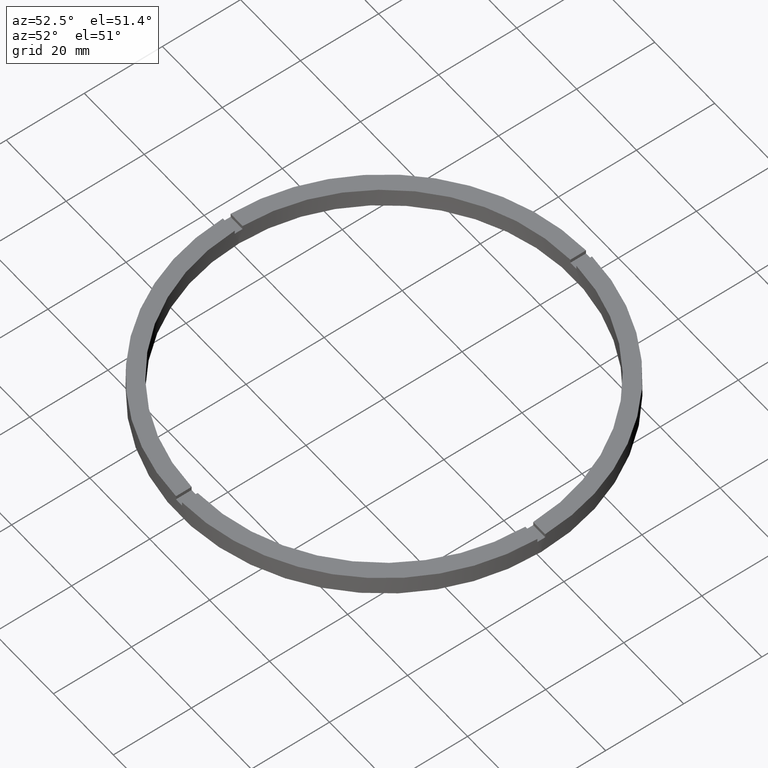
[diagram: clean part render]
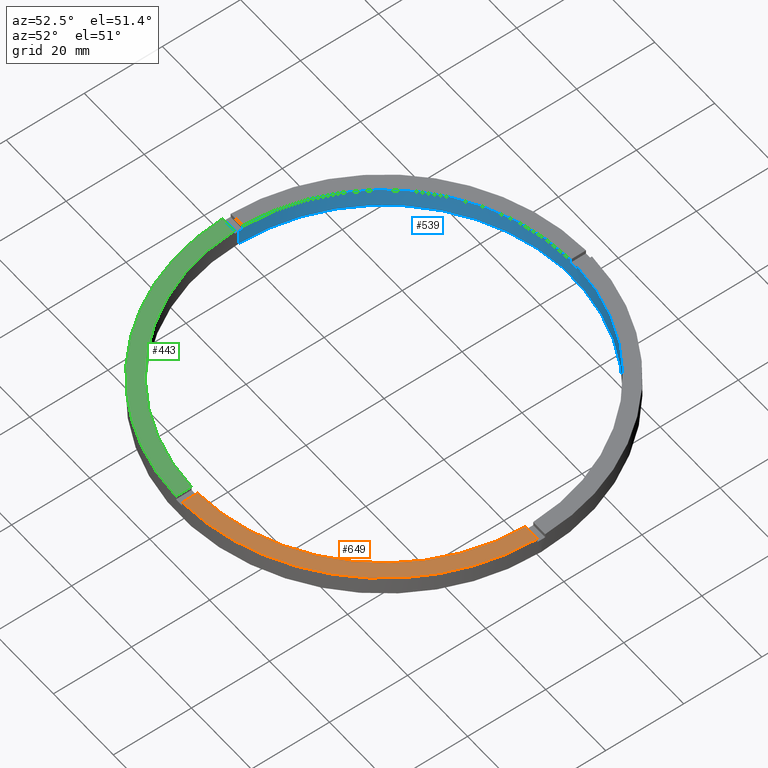
[diagram: same view with three faces highlighted in distinct colors, each labeled with its STEP entity id]
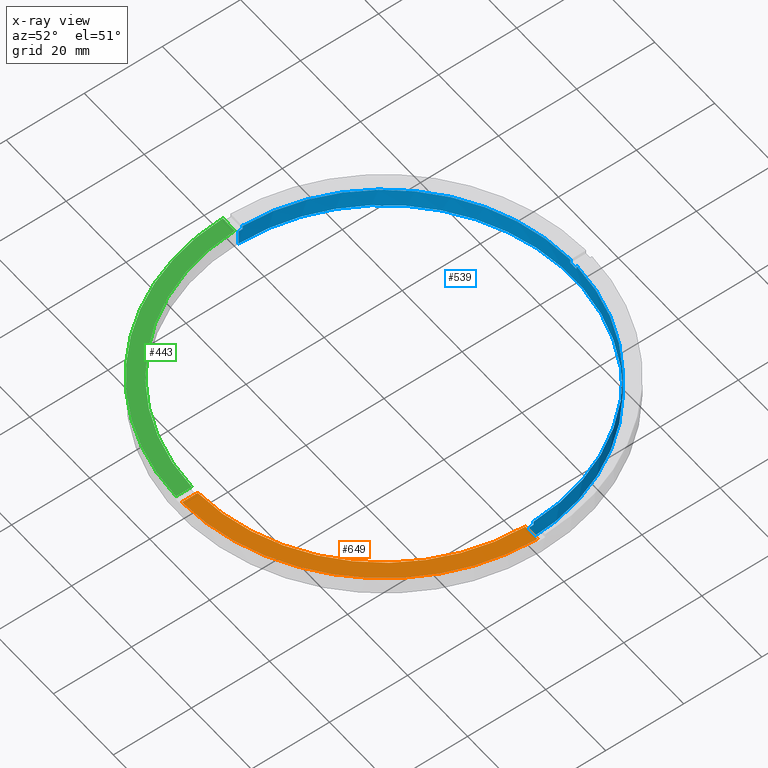
[diagram: x-ray of the same camera — body ghosted, the three highlighted faces saturated]
A machine part, auxiliary view with three faces highlighted in distinct colors.
The next image is the same camera in x-ray (body ghosted, the three faces saturated) — at least one of them is partly hidden behind the body in this view.
Their STEP definitions:

[orange] entity #649 — the highlighted planar face has unit normal (0, 0, 1).
#31 = EDGE_CURVE ( 'NONE', #457, #82, #673, .T. ) ;
#39 = EDGE_CURVE ( 'NONE', #596, #82, #218, .T. ) ;
#54 = DIRECTION ( 'NONE',  ( 1.000000000000000000, 0.000000000000000000, 0.000000000000000000 ) ) ;
#82 = VERTEX_POINT ( 'NONE', #579 ) ;
#84 = ORIENTED_EDGE ( 'NONE', *, *, #746, .F. ) ;
#87 = ORIENTED_EDGE ( 'NONE', *, *, #31, .F. ) ;
#180 = DIRECTION ( 'NONE',  ( 0.000000000000000000, 0.000000000000000000, 1.000000000000000000 ) ) ;
#195 = VERTEX_POINT ( 'NONE', #489 ) ;
#218 = CIRCLE ( 'NONE', #541, 52.50000000000000000 ) ;
#226 = DIRECTION ( 'NONE',  ( -1.301042606982605074E-16, 1.000000000000000000, -0.000000000000000000 ) ) ;
#235 = CARTESIAN_POINT ( 'NONE',  ( 0.9999999999998436806, -52.49047532648184955, 5.000000000000000000 ) ) ;
#244 = CARTESIAN_POINT ( 'NONE',  ( 0.000000000000000000, 0.000000000000000000, 5.000000000000000000 ) ) ;
#248 = DIRECTION ( 'NONE',  ( 0.000000000000000000, 0.000000000000000000, 1.000000000000000000 ) ) ;
#258 = AXIS2_PLACEMENT_3D ( 'NONE', #523, #248, #54 ) ;
#282 = AXIS2_PLACEMENT_3D ( 'NONE', #769, #180, #313 ) ;
#313 = DIRECTION ( 'NONE',  ( 1.000000000000000000, 0.000000000000000000, -0.000000000000000000 ) ) ;
#342 = EDGE_LOOP ( 'NONE', ( #87, #84, #361, #625 ) ) ;
#361 = ORIENTED_EDGE ( 'NONE', *, *, #544, .F. ) ;
#394 = CARTESIAN_POINT ( 'NONE',  ( 0.9999999999998425704, -42.50000000000017764, 5.000000000000000000 ) ) ;
#416 = DIRECTION ( 'NONE',  ( 0.000000000000000000, 0.000000000000000000, 1.000000000000000000 ) ) ;
#418 = VECTOR ( 'NONE', #717, 1000.000000000000000 ) ;
#452 = FACE_OUTER_BOUND ( 'NONE', #342, .T. ) ;
#457 = VERTEX_POINT ( 'NONE', #550 ) ;
#489 = CARTESIAN_POINT ( 'NONE',  ( 0.9999999999998432365, -48.48968962573384545, 5.000000000000000000 ) ) ;
#523 = CARTESIAN_POINT ( 'NONE',  ( 0.000000000000000000, 0.000000000000000000, 5.000000000000000000 ) ) ;
#541 = AXIS2_PLACEMENT_3D ( 'NONE', #244, #416, #584 ) ;
#544 = EDGE_CURVE ( 'NONE', #596, #195, #662, .T. ) ;
#550 = CARTESIAN_POINT ( 'NONE',  ( 48.48968962573384545, -1.000000000000154987, 5.000000000000000000 ) ) ;
#554 = CARTESIAN_POINT ( 'NONE',  ( 42.49999999999998579, -1.000000000000155431, 5.000000000000000000 ) ) ;
#579 = CARTESIAN_POINT ( 'NONE',  ( 52.49047532648184244, -1.000000000000154765, 5.000000000000000000 ) ) ;
#584 = DIRECTION ( 'NONE',  ( 1.000000000000000000, 0.000000000000000000, 0.000000000000000000 ) ) ;
#596 = VERTEX_POINT ( 'NONE', #235 ) ;
#625 = ORIENTED_EDGE ( 'NONE', *, *, #39, .T. ) ;
#649 = ADVANCED_FACE ( 'NONE', ( #452 ), #719, .T. ) ;
#662 = LINE ( 'NONE', #394, #680 ) ;
#673 = LINE ( 'NONE', #554, #418 ) ;
#680 = VECTOR ( 'NONE', #226, 1000.000000000000000 ) ;
#704 = CIRCLE ( 'NONE', #258, 48.50000000000000000 ) ;
#717 = DIRECTION ( 'NONE',  ( 1.000000000000000000, 6.505213034913025371E-17, 0.000000000000000000 ) ) ;
#719 = PLANE ( 'NONE',  #282 ) ;
#746 = EDGE_CURVE ( 'NONE', #195, #457, #704, .T. ) ;
#769 = CARTESIAN_POINT ( 'NONE',  ( 0.000000000000000000, 0.000000000000000000, 5.000000000000000000 ) ) ;

[blue] entity #539 — the highlighted cylindrical surface (partial cylindrical patch) has radius 48.5 mm, axis along (-0, -0, -1).
#19 = AXIS2_PLACEMENT_3D ( 'NONE', #773, #737, #71 ) ;
#20 = CARTESIAN_POINT ( 'NONE',  ( -48.50000000000000000, 0.000000000000000000, 5.000000000000000000 ) ) ;
#23 = CARTESIAN_POINT ( 'NONE',  ( -48.48968962573384545, 0.9999999999999685807, 5.000000000000000000 ) ) ;
#34 = DIRECTION ( 'NONE',  ( 1.000000000000000000, 0.000000000000000000, 0.000000000000000000 ) ) ;
#37 = CARTESIAN_POINT ( 'NONE',  ( 48.48968962573384545, 0.9999999999998450129, 5.000000000000000000 ) ) ;
#40 = DIRECTION ( 'NONE',  ( 0.000000000000000000, 0.000000000000000000, 1.000000000000000000 ) ) ;
#43 = EDGE_CURVE ( 'NONE', #130, #98, #480, .T. ) ;
#57 = DIRECTION ( 'NONE',  ( 0.000000000000000000, 0.000000000000000000, 1.000000000000000000 ) ) ;
#59 = CARTESIAN_POINT ( 'NONE',  ( 0.9999999999999729106, 48.48968962573384545, 4.000000000000000000 ) ) ;
#65 = DIRECTION ( 'NONE',  ( -0.000000000000000000, -0.000000000000000000, -1.000000000000000000 ) ) ;
#67 = AXIS2_PLACEMENT_3D ( 'NONE', #328, #229, #34 ) ;
#71 = DIRECTION ( 'NONE',  ( 1.000000000000000000, 0.000000000000000000, 0.000000000000000000 ) ) ;
#79 = ORIENTED_EDGE ( 'NONE', *, *, #147, .F. ) ;
#98 = VERTEX_POINT ( 'NONE', #502 ) ;
#112 = VERTEX_POINT ( 'NONE', #148 ) ;
#114 = DIRECTION ( 'NONE',  ( 0.000000000000000000, 0.000000000000000000, 1.000000000000000000 ) ) ;
#115 = ORIENTED_EDGE ( 'NONE', *, *, #389, .T. ) ;
#116 = CARTESIAN_POINT ( 'NONE',  ( -1.000000000000027089, 48.48968962573384545, 5.000000000000000000 ) ) ;
#118 = CIRCLE ( 'NONE', #142, 48.50000000000000000 ) ;
#127 = EDGE_LOOP ( 'NONE', ( #594, #338, #332, #351, #79, #115, #393, #651, #372, #345, #623, #620 ) ) ;
#130 = VERTEX_POINT ( 'NONE', #116 ) ;
#142 = AXIS2_PLACEMENT_3D ( 'NONE', #456, #504, #292 ) ;
#147 = EDGE_CURVE ( 'NONE', #617, #640, #473, .T. ) ;
#148 = CARTESIAN_POINT ( 'NONE',  ( 48.50000000000000000, 5.939536975864663363E-15, 0.000000000000000000 ) ) ;
#151 = VERTEX_POINT ( 'NONE', #479 ) ;
#157 = FACE_OUTER_BOUND ( 'NONE', #127, .T. ) ;
#165 = CIRCLE ( 'NONE', #67, 48.50000000000000000 ) ;
#166 = DIRECTION ( 'NONE',  ( -1.000000000000000000, 0.000000000000000000, 0.000000000000000000 ) ) ;
#168 = CIRCLE ( 'NONE', #526, 48.50000000000000000 ) ;
#172 = CARTESIAN_POINT ( 'NONE',  ( -48.50000000000000000, 0.000000000000000000, 0.000000000000000000 ) ) ;
#186 = CARTESIAN_POINT ( 'NONE',  ( 0.9999999999999729106, 48.48968962573384545, 5.000000000000000000 ) ) ;
#197 = CIRCLE ( 'NONE', #19, 48.50000000000000000 ) ;
#203 = LINE ( 'NONE', #514, #459 ) ;
#213 = VECTOR ( 'NONE', #771, 1000.000000000000000 ) ;
#215 = CARTESIAN_POINT ( 'NONE',  ( 0.000000000000000000, 0.000000000000000000, 0.000000000000000000 ) ) ;
#225 = LINE ( 'NONE', #20, #213 ) ;
#229 = DIRECTION ( 'NONE',  ( 0.000000000000000000, 0.000000000000000000, 1.000000000000000000 ) ) ;
#230 = CARTESIAN_POINT ( 'NONE',  ( 0.9999999999999729106, 48.48968962573384545, 5.000000000000000000 ) ) ;
#240 = EDGE_CURVE ( 'NONE', #151, #621, #225, .T. ) ;
#242 = CARTESIAN_POINT ( 'NONE',  ( -48.48968962573384545, 0.9999999999999685807, 5.000000000000000000 ) ) ;
#246 = EDGE_CURVE ( 'NONE', #130, #626, #168, .T. ) ;
#252 = EDGE_CURVE ( 'NONE', #355, #626, #406, .T. ) ;
#265 = CARTESIAN_POINT ( 'NONE',  ( 0.000000000000000000, 0.000000000000000000, 4.000000000000000000 ) ) ;
#277 = DIRECTION ( 'NONE',  ( 0.000000000000000000, 0.000000000000000000, 1.000000000000000000 ) ) ;
#292 = DIRECTION ( 'NONE',  ( 1.000000000000000000, 0.000000000000000000, 0.000000000000000000 ) ) ;
#295 = DIRECTION ( 'NONE',  ( -0.000000000000000000, -0.000000000000000000, -1.000000000000000000 ) ) ;
#303 = DIRECTION ( 'NONE',  ( 1.000000000000000000, 0.000000000000000000, 0.000000000000000000 ) ) ;
#309 = DIRECTION ( 'NONE',  ( 1.000000000000000000, 0.000000000000000000, 0.000000000000000000 ) ) ;
#311 = EDGE_CURVE ( 'NONE', #334, #640, #165, .T. ) ;
#328 = CARTESIAN_POINT ( 'NONE',  ( 0.000000000000000000, 0.000000000000000000, 5.000000000000000000 ) ) ;
#332 = ORIENTED_EDGE ( 'NONE', *, *, #758, .F. ) ;
#334 = VERTEX_POINT ( 'NONE', #37 ) ;
#338 = ORIENTED_EDGE ( 'NONE', *, *, #509, .T. ) ;
#340 = EDGE_CURVE ( 'NONE', #112, #621, #365, .T. ) ;
#345 = ORIENTED_EDGE ( 'NONE', *, *, #676, .T. ) ;
#351 = ORIENTED_EDGE ( 'NONE', *, *, #311, .T. ) ;
#355 = VERTEX_POINT ( 'NONE', #363 ) ;
#363 = CARTESIAN_POINT ( 'NONE',  ( -48.48968962573384545, 0.9999999999999685807, 4.000000000000000000 ) ) ;
#365 = CIRCLE ( 'NONE', #778, 48.50000000000000000 ) ;
#372 = ORIENTED_EDGE ( 'NONE', *, *, #252, .F. ) ;
#389 = EDGE_CURVE ( 'NONE', #617, #98, #118, .T. ) ;
#393 = ORIENTED_EDGE ( 'NONE', *, *, #43, .F. ) ;
#406 = LINE ( 'NONE', #23, #677 ) ;
#414 = LINE ( 'NONE', #513, #672 ) ;
#427 = CYLINDRICAL_SURFACE ( 'NONE', #568, 48.50000000000000000 ) ;
#440 = CARTESIAN_POINT ( 'NONE',  ( -1.000000000000027089, 48.48968962573384545, 5.000000000000000000 ) ) ;
#456 = CARTESIAN_POINT ( 'NONE',  ( 0.000000000000000000, 0.000000000000000000, 4.000000000000000000 ) ) ;
#459 = VECTOR ( 'NONE', #65, 1000.000000000000000 ) ;
#464 = VERTEX_POINT ( 'NONE', #604 ) ;
#473 = LINE ( 'NONE', #230, #483 ) ;
#475 = DIRECTION ( 'NONE',  ( -0.000000000000000000, -0.000000000000000000, -1.000000000000000000 ) ) ;
#479 = CARTESIAN_POINT ( 'NONE',  ( -48.50000000000000000, 0.000000000000000000, 4.000000000000000000 ) ) ;
#480 = LINE ( 'NONE', #440, #739 ) ;
#483 = VECTOR ( 'NONE', #779, 1000.000000000000000 ) ;
#495 = CARTESIAN_POINT ( 'NONE',  ( 48.50000000000000000, 5.939536975864663363E-15, 4.000000000000000000 ) ) ;
#502 = CARTESIAN_POINT ( 'NONE',  ( -1.000000000000027089, 48.48968962573384545, 4.000000000000000000 ) ) ;
#504 = DIRECTION ( 'NONE',  ( 0.000000000000000000, -0.000000000000000000, 1.000000000000000000 ) ) ;
#509 = EDGE_CURVE ( 'NONE', #624, #464, #648, .T. ) ;
#513 = CARTESIAN_POINT ( 'NONE',  ( 48.50000000000000000, 5.939536975864663363E-15, 5.000000000000000000 ) ) ;
#514 = CARTESIAN_POINT ( 'NONE',  ( 48.48968962573384545, 0.9999999999998450129, 5.000000000000000000 ) ) ;
#526 = AXIS2_PLACEMENT_3D ( 'NONE', #764, #57, #601 ) ;
#538 = EDGE_CURVE ( 'NONE', #624, #112, #414, .T. ) ;
#539 = ADVANCED_FACE ( 'NONE', ( #157 ), #427, .F. ) ;
#543 = AXIS2_PLACEMENT_3D ( 'NONE', #265, #40, #309 ) ;
#568 = AXIS2_PLACEMENT_3D ( 'NONE', #586, #759, #166 ) ;
#586 = CARTESIAN_POINT ( 'NONE',  ( 0.000000000000000000, 0.000000000000000000, 5.000000000000000000 ) ) ;
#594 = ORIENTED_EDGE ( 'NONE', *, *, #538, .F. ) ;
#601 = DIRECTION ( 'NONE',  ( 1.000000000000000000, 0.000000000000000000, 0.000000000000000000 ) ) ;
#604 = CARTESIAN_POINT ( 'NONE',  ( 48.48968962573384545, 0.9999999999998450129, 4.000000000000000000 ) ) ;
#617 = VERTEX_POINT ( 'NONE', #59 ) ;
#620 = ORIENTED_EDGE ( 'NONE', *, *, #340, .F. ) ;
#621 = VERTEX_POINT ( 'NONE', #172 ) ;
#623 = ORIENTED_EDGE ( 'NONE', *, *, #240, .T. ) ;
#624 = VERTEX_POINT ( 'NONE', #495 ) ;
#626 = VERTEX_POINT ( 'NONE', #242 ) ;
#640 = VERTEX_POINT ( 'NONE', #186 ) ;
#648 = CIRCLE ( 'NONE', #543, 48.50000000000000000 ) ;
#651 = ORIENTED_EDGE ( 'NONE', *, *, #246, .T. ) ;
#672 = VECTOR ( 'NONE', #475, 1000.000000000000000 ) ;
#676 = EDGE_CURVE ( 'NONE', #355, #151, #197, .T. ) ;
#677 = VECTOR ( 'NONE', #277, 1000.000000000000000 ) ;
#737 = DIRECTION ( 'NONE',  ( 0.000000000000000000, 0.000000000000000000, 1.000000000000000000 ) ) ;
#739 = VECTOR ( 'NONE', #295, 1000.000000000000000 ) ;
#758 = EDGE_CURVE ( 'NONE', #334, #464, #203, .T. ) ;
#759 = DIRECTION ( 'NONE',  ( -0.000000000000000000, -0.000000000000000000, -1.000000000000000000 ) ) ;
#764 = CARTESIAN_POINT ( 'NONE',  ( 0.000000000000000000, 0.000000000000000000, 5.000000000000000000 ) ) ;
#771 = DIRECTION ( 'NONE',  ( -0.000000000000000000, -0.000000000000000000, -1.000000000000000000 ) ) ;
#773 = CARTESIAN_POINT ( 'NONE',  ( 0.000000000000000000, 0.000000000000000000, 4.000000000000000000 ) ) ;
#778 = AXIS2_PLACEMENT_3D ( 'NONE', #215, #114, #303 ) ;
#779 = DIRECTION ( 'NONE',  ( 0.000000000000000000, 0.000000000000000000, 1.000000000000000000 ) ) ;

[green] entity #443 — the highlighted planar face has unit normal (0, 0, 1).
#3 = CARTESIAN_POINT ( 'NONE',  ( -42.50000000000018474, -1.000000000000030198, 5.000000000000000000 ) ) ;
#11 = DIRECTION ( 'NONE',  ( 1.000000000000000000, 0.000000000000000000, -0.000000000000000000 ) ) ;
#38 = CARTESIAN_POINT ( 'NONE',  ( -1.000000000000156763, -48.48968962573384545, 5.000000000000000000 ) ) ;
#41 = CARTESIAN_POINT ( 'NONE',  ( -1.000000000000156319, -52.49047532648184244, 5.000000000000000000 ) ) ;
#101 = ORIENTED_EDGE ( 'NONE', *, *, #522, .T. ) ;
#125 = CARTESIAN_POINT ( 'NONE',  ( 0.000000000000000000, 0.000000000000000000, 5.000000000000000000 ) ) ;
#126 = VERTEX_POINT ( 'NONE', #38 ) ;
#136 = VERTEX_POINT ( 'NONE', #570 ) ;
#167 = CARTESIAN_POINT ( 'NONE',  ( -1.000000000000157430, -42.50000000000017764, 5.000000000000000000 ) ) ;
#194 = CARTESIAN_POINT ( 'NONE',  ( -52.49047532648184244, -1.000000000000032196, 5.000000000000000000 ) ) ;
#302 = DIRECTION ( 'NONE',  ( 1.000000000000000000, 0.000000000000000000, 0.000000000000000000 ) ) ;
#324 = EDGE_CURVE ( 'NONE', #723, #136, #410, .T. ) ;
#333 = DIRECTION ( 'NONE',  ( 1.000000000000000000, 1.951563910473907735E-16, -0.000000000000000000 ) ) ;
#349 = DIRECTION ( 'NONE',  ( 0.000000000000000000, 0.000000000000000000, 1.000000000000000000 ) ) ;
#358 = ORIENTED_EDGE ( 'NONE', *, *, #754, .F. ) ;
#368 = FACE_OUTER_BOUND ( 'NONE', #709, .T. ) ;
#369 = ORIENTED_EDGE ( 'NONE', *, *, #324, .F. ) ;
#378 = CIRCLE ( 'NONE', #688, 48.50000000000000000 ) ;
#386 = VECTOR ( 'NONE', #333, 1000.000000000000000 ) ;
#402 = CIRCLE ( 'NONE', #439, 52.50000000000000000 ) ;
#407 = ORIENTED_EDGE ( 'NONE', *, *, #517, .F. ) ;
#410 = LINE ( 'NONE', #3, #386 ) ;
#429 = VERTEX_POINT ( 'NONE', #41 ) ;
#433 = LINE ( 'NONE', #167, #705 ) ;
#439 = AXIS2_PLACEMENT_3D ( 'NONE', #691, #484, #302 ) ;
#443 = ADVANCED_FACE ( 'NONE', ( #368 ), #559, .T. ) ;
#471 = DIRECTION ( 'NONE',  ( 1.000000000000000000, 0.000000000000000000, 0.000000000000000000 ) ) ;
#484 = DIRECTION ( 'NONE',  ( 0.000000000000000000, 0.000000000000000000, 1.000000000000000000 ) ) ;
#485 = DIRECTION ( 'NONE',  ( 1.301042606982605074E-16, -1.000000000000000000, 0.000000000000000000 ) ) ;
#491 = DIRECTION ( 'NONE',  ( 0.000000000000000000, 0.000000000000000000, 1.000000000000000000 ) ) ;
#517 = EDGE_CURVE ( 'NONE', #136, #126, #378, .T. ) ;
#522 = EDGE_CURVE ( 'NONE', #723, #429, #402, .T. ) ;
#559 = PLANE ( 'NONE',  #607 ) ;
#570 = CARTESIAN_POINT ( 'NONE',  ( -48.48968962573384545, -1.000000000000031530, 5.000000000000000000 ) ) ;
#582 = CARTESIAN_POINT ( 'NONE',  ( 0.000000000000000000, 0.000000000000000000, 5.000000000000000000 ) ) ;
#607 = AXIS2_PLACEMENT_3D ( 'NONE', #582, #491, #11 ) ;
#688 = AXIS2_PLACEMENT_3D ( 'NONE', #125, #349, #471 ) ;
#691 = CARTESIAN_POINT ( 'NONE',  ( 0.000000000000000000, 0.000000000000000000, 5.000000000000000000 ) ) ;
#705 = VECTOR ( 'NONE', #485, 1000.000000000000000 ) ;
#709 = EDGE_LOOP ( 'NONE', ( #358, #407, #369, #101 ) ) ;
#723 = VERTEX_POINT ( 'NONE', #194 ) ;
#754 = EDGE_CURVE ( 'NONE', #126, #429, #433, .T. ) ;